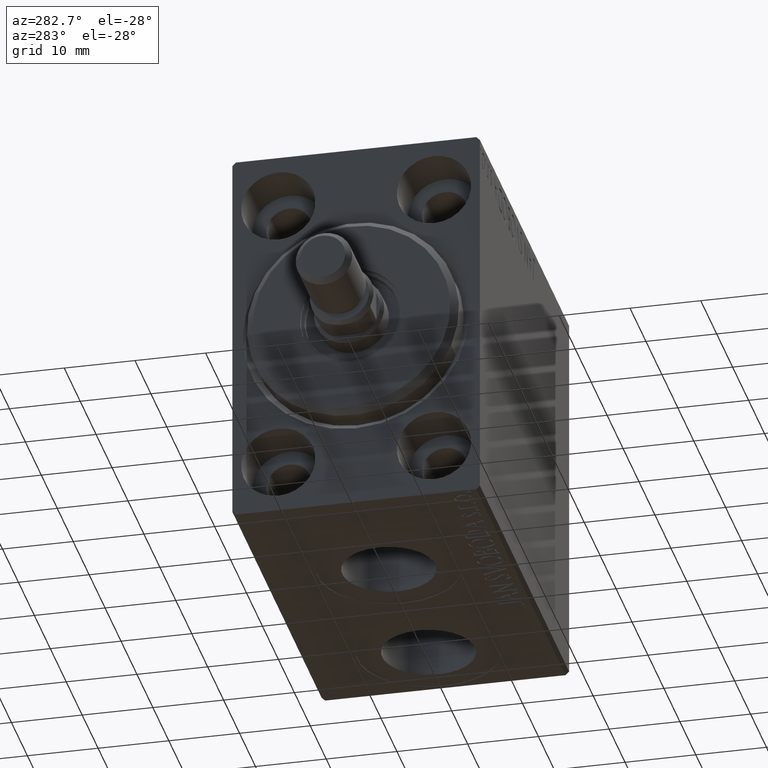
[diagram: clean part render]
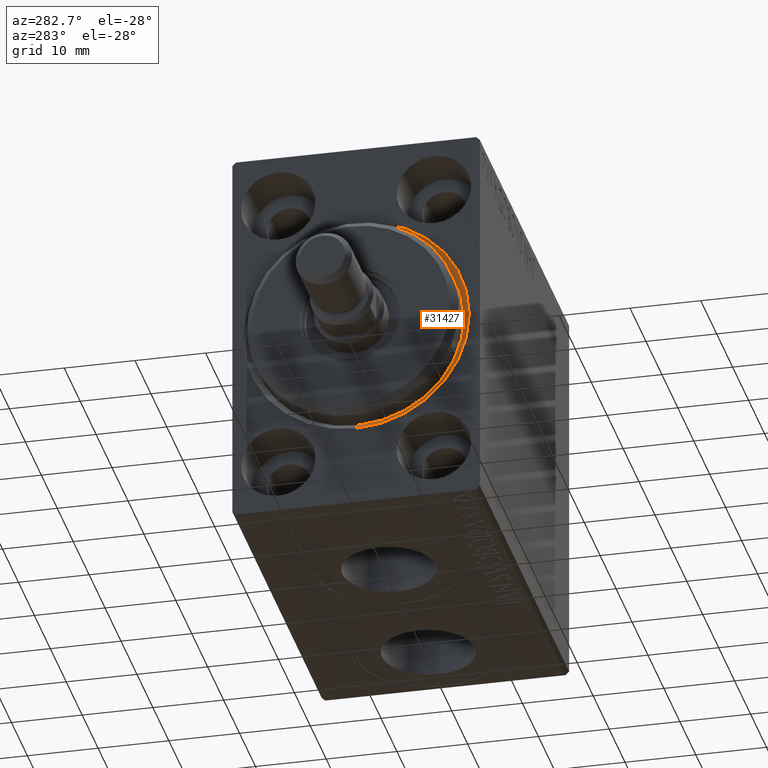
[diagram: same view with one face highlighted and labeled with its STEP entity id]
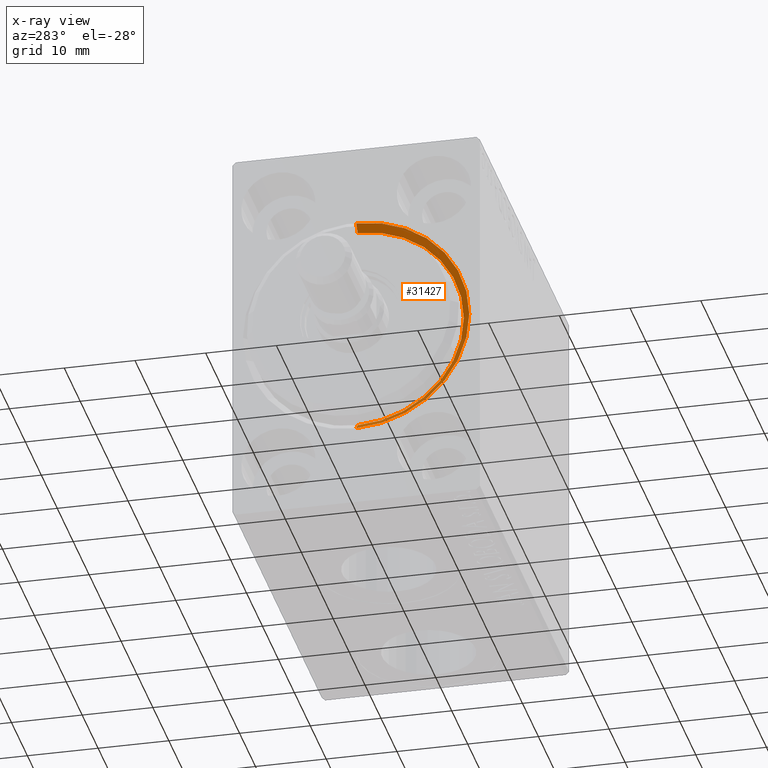
[diagram: x-ray of the same camera — body ghosted, the highlighted face saturated]
A machine part, auxiliary view. The second image highlights one B-rep face of the part: STEP entity #31427.
The next image is the same camera in x-ray: the body ghosted, the highlighted face saturated — about 0% of this face is hidden behind the body in this view.
In plain terms, the highlighted conical surface has half-angle 45 deg.
Its self-contained STEP definition (entity closure, byte-faithful):
#587 = CARTESIAN_POINT ( 'NONE',  ( 1.000000000000013101, 0.000000000000000000, 0.000000000000000000 ) ) ;
#1126 = EDGE_CURVE ( 'NONE', #4727, #13245, #23021, .T. ) ;
#1375 = VECTOR ( 'NONE', #39941, 1000.000000000000114 ) ;
#3744 = DIRECTION ( 'NONE',  ( -1.000000000000000000, 0.000000000000000000, 0.000000000000000000 ) ) ;
#4122 = ORIENTED_EDGE ( 'NONE', *, *, #6588, .T. ) ;
#4727 = VERTEX_POINT ( 'NONE', #27892 ) ;
#4830 = CONICAL_SURFACE ( 'NONE', #19185, 15.00000000000000000, 0.7853981633974491672 ) ;
#6588 = EDGE_CURVE ( 'NONE', #19117, #11777, #43624, .T. ) ;
#7576 = CARTESIAN_POINT ( 'NONE',  ( 0.000000000000000000, 1.959434878635766709E-15, -16.00000000000001421 ) ) ;
#8610 = CARTESIAN_POINT ( 'NONE',  ( 0.000000000000000000, 0.000000000000000000, 0.000000000000000000 ) ) ;
#10074 = CARTESIAN_POINT ( 'NONE',  ( 1.000000000000013101, 1.836970198721029589E-15, -15.00000000000000000 ) ) ;
#10935 = EDGE_CURVE ( 'NONE', #13245, #11777, #27426, .T. ) ;
#11777 = VERTEX_POINT ( 'NONE', #7576 ) ;
#13245 = VERTEX_POINT ( 'NONE', #20861 ) ;
#15807 = DIRECTION ( 'NONE',  ( 1.000000000000000000, 0.000000000000000000, 0.000000000000000000 ) ) ;
#16628 = AXIS2_PLACEMENT_3D ( 'NONE', #8610, #15807, #43278 ) ;
#17241 = FACE_OUTER_BOUND ( 'NONE', #32461, .T. ) ;
#19117 = VERTEX_POINT ( 'NONE', #10074 ) ;
#19185 = AXIS2_PLACEMENT_3D ( 'NONE', #30990, #3744, #20392 ) ;
#20392 = DIRECTION ( 'NONE',  ( 0.000000000000000000, 0.000000000000000000, 1.000000000000000000 ) ) ;
#20861 = CARTESIAN_POINT ( 'NONE',  ( 0.000000000000000000, 0.000000000000000000, 16.00000000000001421 ) ) ;
#23021 = LINE ( 'NONE', #36995, #1375 ) ;
#24507 = VECTOR ( 'NONE', #36870, 1000.000000000000114 ) ;
#27426 = CIRCLE ( 'NONE', #16628, 16.00000000000001421 ) ;
#27592 = DIRECTION ( 'NONE',  ( -1.000000000000000000, 0.000000000000000000, 0.000000000000000000 ) ) ;
#27657 = CIRCLE ( 'NONE', #31973, 15.00000000000000000 ) ;
#27892 = CARTESIAN_POINT ( 'NONE',  ( 1.000000000000013101, 0.000000000000000000, 15.00000000000000000 ) ) ;
#28035 = DIRECTION ( 'NONE',  ( 0.000000000000000000, 0.000000000000000000, -1.000000000000000000 ) ) ;
#28160 = ORIENTED_EDGE ( 'NONE', *, *, #34761, .F. ) ;
#30990 = CARTESIAN_POINT ( 'NONE',  ( 1.000000000000013101, 0.000000000000000000, 0.000000000000000000 ) ) ;
#31427 = ADVANCED_FACE ( 'NONE', ( #17241 ), #4830, .F. ) ;
#31973 = AXIS2_PLACEMENT_3D ( 'NONE', #587, #27592, #28035 ) ;
#32461 = EDGE_LOOP ( 'NONE', ( #28160, #4122, #42485, #40161 ) ) ;
#34761 = EDGE_CURVE ( 'NONE', #19117, #4727, #27657, .T. ) ;
#36209 = CARTESIAN_POINT ( 'NONE',  ( 1.000000000000013101, 1.836970198721029589E-15, -15.00000000000000000 ) ) ;
#36870 = DIRECTION ( 'NONE',  ( -0.7071067811865469066, 8.659560562354940254E-17, -0.7071067811865481278 ) ) ;
#36995 = CARTESIAN_POINT ( 'NONE',  ( 1.000000000000013101, 0.000000000000000000, 15.00000000000000000 ) ) ;
#39941 = DIRECTION ( 'NONE',  ( -0.7071067811865469066, 0.000000000000000000, 0.7071067811865481278 ) ) ;
#40161 = ORIENTED_EDGE ( 'NONE', *, *, #1126, .F. ) ;
#42485 = ORIENTED_EDGE ( 'NONE', *, *, #10935, .F. ) ;
#43278 = DIRECTION ( 'NONE',  ( 0.000000000000000000, 0.000000000000000000, -1.000000000000000000 ) ) ;
#43624 = LINE ( 'NONE', #36209, #24507 ) ;